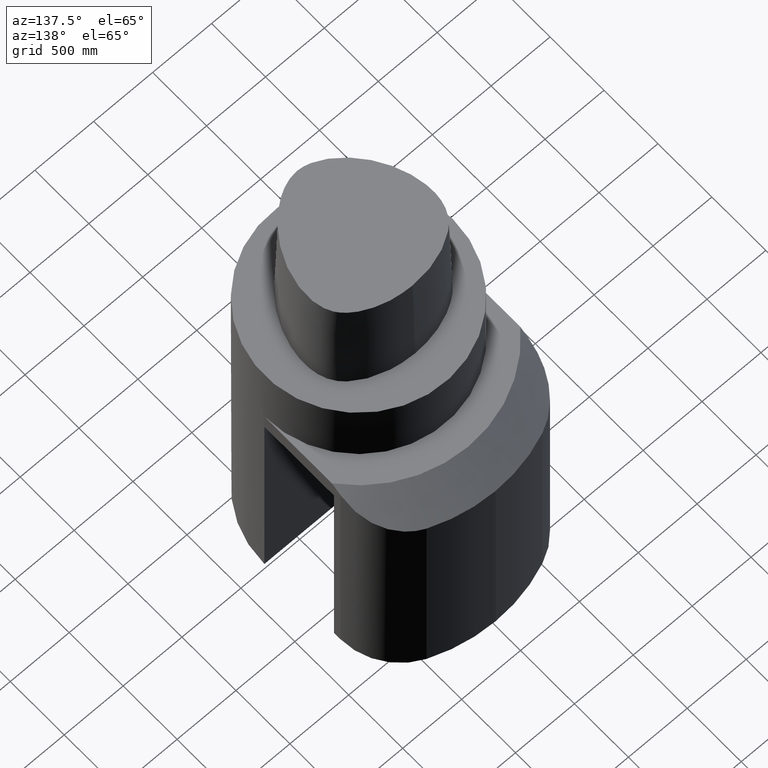
[diagram: clean part render]
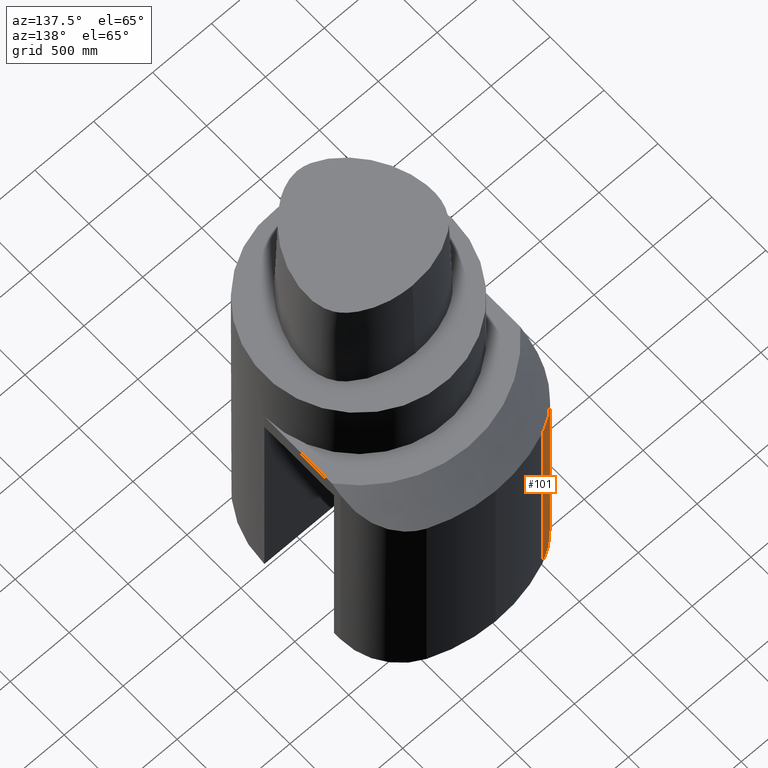
[diagram: same view with one face highlighted and labeled with its STEP entity id]
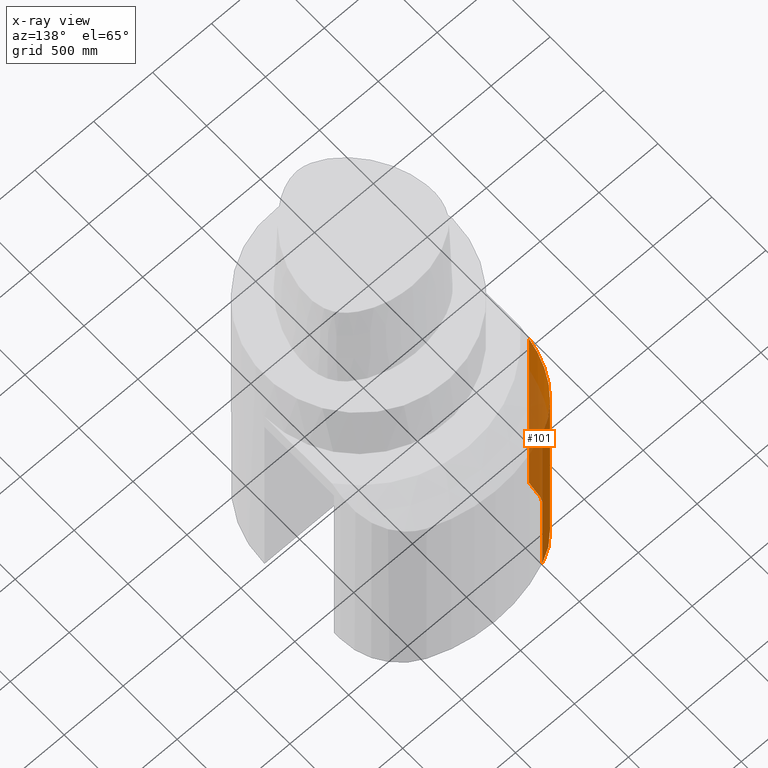
[diagram: x-ray of the same camera — body ghosted, the highlighted face saturated]
A machine part, auxiliary view. The second image highlights one B-rep face of the part: STEP entity #101.
The next image is the same camera in x-ray: the body ghosted, the highlighted face saturated — about 50% of this face is hidden behind the body in this view.
In plain terms, the highlighted cylindrical surface (partial cylindrical patch) has radius 508 mm, axis along (-0, 0, 1).
Its self-contained STEP definition (entity closure, byte-faithful):
#101=ADVANCED_FACE('Unnamed[1]',(#273),#274,.T.);
#123=EDGE_CURVE('Unnamed[1]',#306,#281,#307,.T.);
#132=EDGE_CURVE('Unnamed[1]',#281,#320,#321,.T.);
#136=EDGE_CURVE('Unnamed[1]',#326,#320,#327,.T.);
#222=EDGE_CURVE('Unnamed[1]',#326,#306,#435,.T.);
#273=FACE_OUTER_BOUND('',#567,.T.);
#274=CYLINDRICAL_SURFACE('',#568,20.0);
#281=VERTEX_POINT('',#594);
#306=VERTEX_POINT('',#711);
#307=LINE('',#712,#713);
#320=VERTEX_POINT('',#731);
#321=B_SPLINE_CURVE_WITH_KNOTS('',3,(#732,#733,#734,#735,#736,#737,#738,#739,#740,#741,#742,#743,#744,#745,#746,#747),.UNSPECIFIED.,.F.,.F.,(4,2,2,2,2,2,2,4),(29.0020988864993,32.2557682753033,35.5094376641073,38.7631070529113,42.0167764417153,46.0136317745361,50.010487107357,54.0073424401778),.UNSPECIFIED.);
#326=VERTEX_POINT('',#755);
#327=LINE('',#756,#757);
#435=CIRCLE('',#974,20.0);
#567=EDGE_LOOP('',(#1021,#1022,#1023,#1024));
#568=AXIS2_PLACEMENT_3D('',#1025,#1026,#1027);
#594=CARTESIAN_POINT('',(-19.169546318746,46.1775147707605,-33.9983437372701));
#711=CARTESIAN_POINT('',(-19.169546318746,46.1775147707605,-110.000000000068));
#712=CARTESIAN_POINT('',(-19.169546318746,46.1775147707605,-224.0));
#713=VECTOR('',#1061,1.0);
#731=CARTESIAN_POINT('',(-31.4999999999998,27.7065088624563,-25.9511696302404));
#732=CARTESIAN_POINT('',(-19.1670899300591,46.1785345230162,-33.9983438433739));
#733=CARTESIAN_POINT('',(-20.1687876707418,45.7627649262389,-33.9983438433739));
#734=CARTESIAN_POINT('',(-21.1697701190346,45.2500750327901,-33.9445702457791));
#735=CARTESIAN_POINT('',(-23.0874184455948,44.0470382876637,-33.7182271613307));
#736=CARTESIAN_POINT('',(-24.0041260234216,43.356752997074,-33.5456837693405));
#737=CARTESIAN_POINT('',(-25.6913906263684,41.8446750714735,-33.0896431678623));
#738=CARTESIAN_POINT('',(-26.463359937482,41.0217333989238,-32.8057572576399));
#739=CARTESIAN_POINT('',(-27.826692802136,39.3098035346397,-32.1507569772399));
#740=CARTESIAN_POINT('',(-28.4181286849675,38.420893460769,-31.7795889889911));
#741=CARTESIAN_POINT('',(-29.5254030342725,36.4601202044392,-30.9018447518449));
#742=CARTESIAN_POINT('',(-30.04246955808,35.3059537151176,-30.3451062098026));
#743=CARTESIAN_POINT('',(-30.8469485336613,32.9286082486609,-29.1069395953025));
#744=CARTESIAN_POINT('',(-31.1345513801991,31.7055286309925,-28.4254444635838));
#745=CARTESIAN_POINT('',(-31.4762891277182,29.2735751745386,-26.9734597059358));
#746=CARTESIAN_POINT('',(-31.5307709689678,28.0633682666182,-26.2020264842946));
#747=CARTESIAN_POINT('',(-31.4836714121862,26.8985008861559,-25.4095510180065));
#755=CARTESIAN_POINT('',(-31.4999999999998,27.7065088624563,-110.000000000086));
#756=CARTESIAN_POINT('',(-31.4999999999998,27.7065088624563,-224.0));
#757=VECTOR('',#1075,1.0);
#974=AXIS2_PLACEMENT_3D('',#1206,#1207,#1208);
#1021=ORIENTED_EDGE('',*,*,#222,.F.);
#1022=ORIENTED_EDGE('',*,*,#136,.T.);
#1023=ORIENTED_EDGE('',*,*,#132,.F.);
#1024=ORIENTED_EDGE('',*,*,#123,.F.);
#1025=CARTESIAN_POINT('',(-11.4999999999998,27.7065088624563,-224.0));
#1026=DIRECTION('',(-1.22464679914735E-016,6.12323399573677E-017,1.0));
#1027=DIRECTION('',(3.06161699786838E-016,1.0,-6.12323399573676E-017));
#1061=DIRECTION('',(-1.22464679914735E-016,6.12323399573677E-017,1.0));
#1075=DIRECTION('',(-1.22464679914735E-016,6.12323399573677E-017,1.0));
#1206=CARTESIAN_POINT('',(-11.4999999999998,27.7065088624563,-110.000000000077));
#1207=DIRECTION('',(1.50533619611409E-012,-6.12323399576442E-017,-1.0));
#1208=DIRECTION('',(3.06161699786838E-016,1.0,-6.12323399571833E-017));